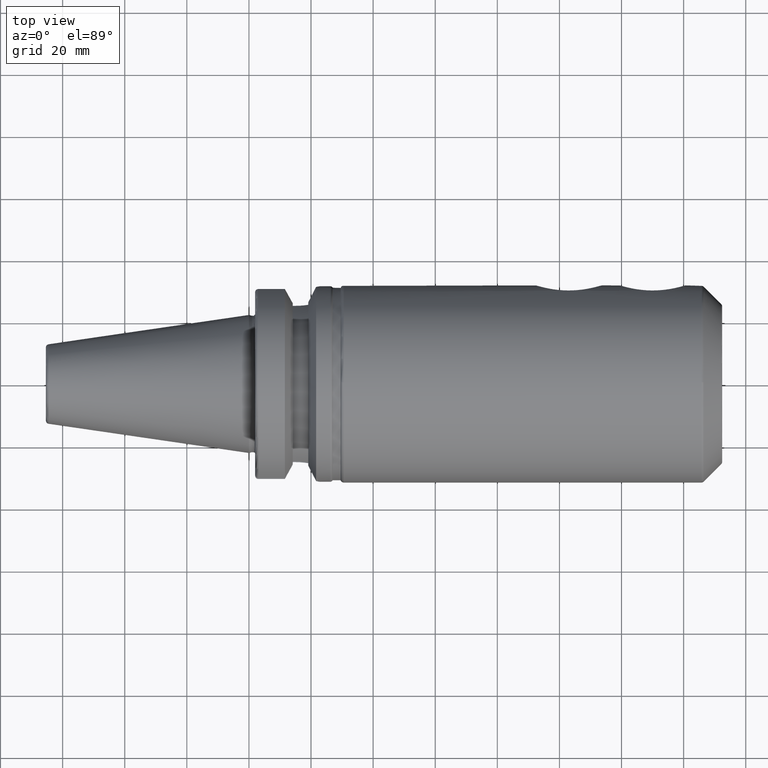
[diagram: clean part render]
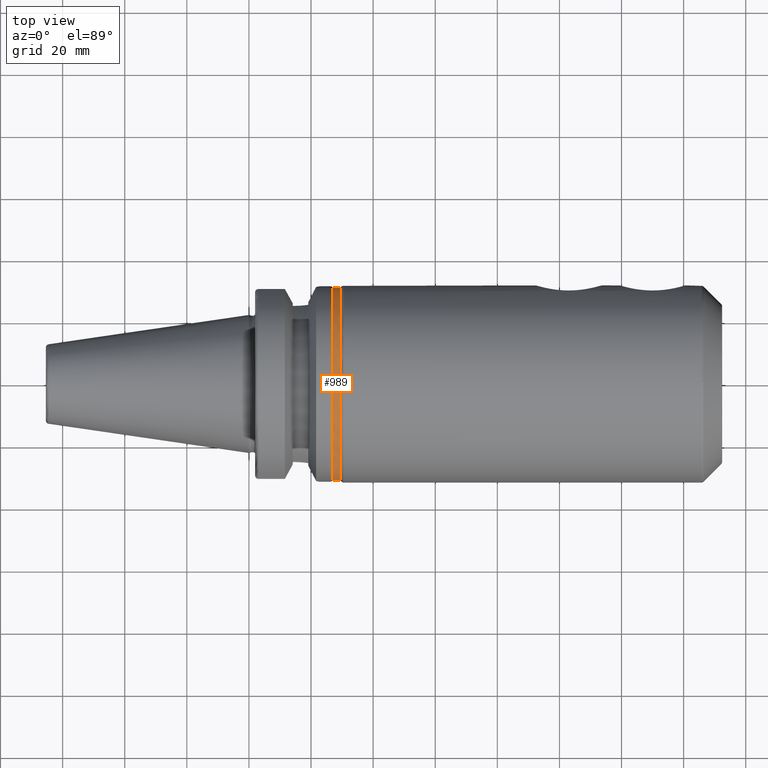
[diagram: same view with one face highlighted and labeled with its STEP entity id]
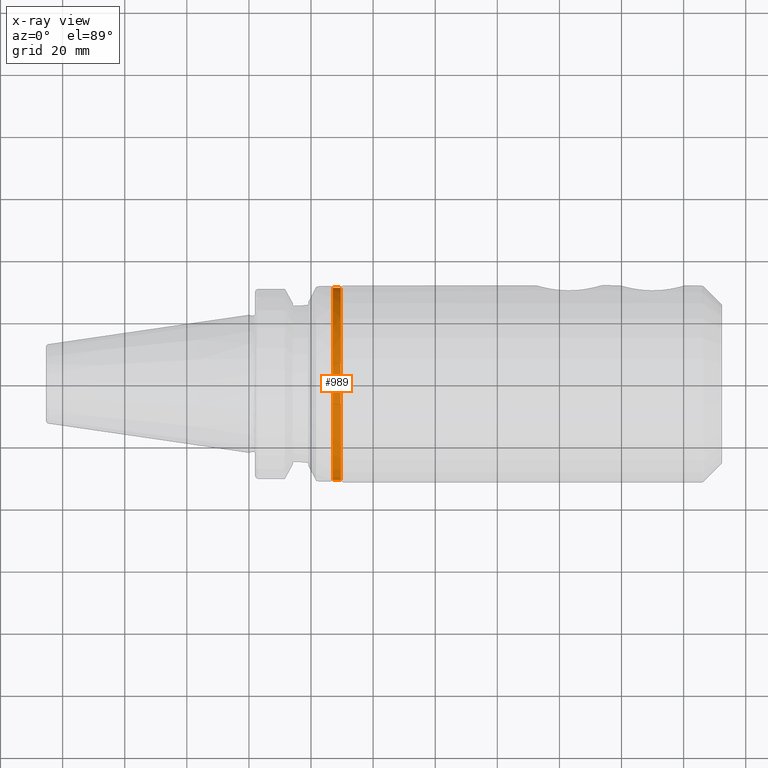
[diagram: x-ray of the same camera — body ghosted, the highlighted face saturated]
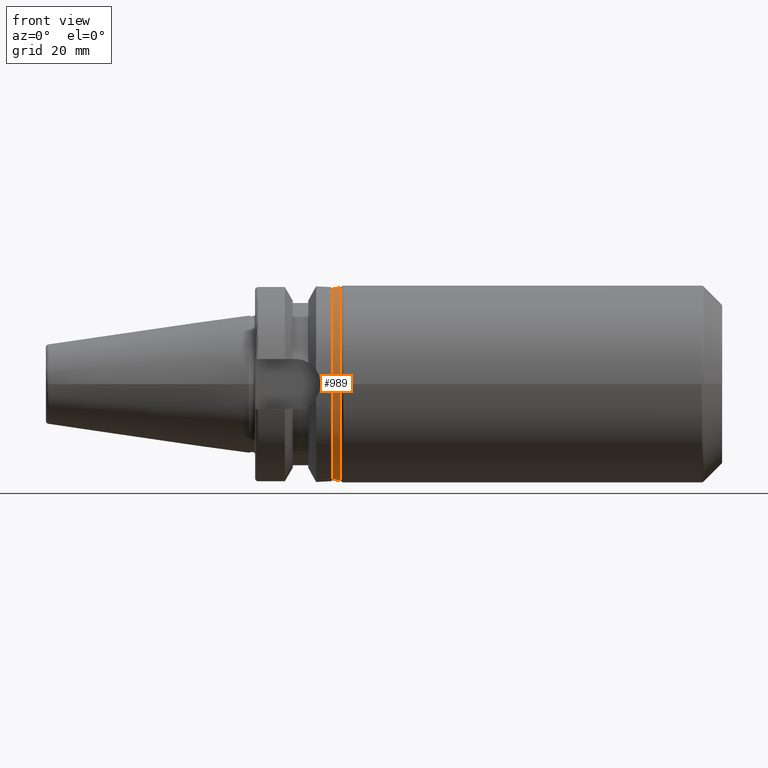
[diagram: same view with one face highlighted and labeled with its STEP entity id]
A machine part, top view. The second image highlights one B-rep face of the part: STEP entity #989.
The next image is the same camera in x-ray: the body ghosted, the highlighted face saturated — about 0% of this face is hidden behind the body in this view.
A second angle (front view) of the same face is appended — the face is thin or edge-on in the first view.
In plain terms, the highlighted cylindrical surface (bore or boss wall) has radius 31 mm, axis along (1, 0, 0).
Its self-contained STEP definition (entity closure, byte-faithful):
#76=LINE('',#2187,#130);
#130=VECTOR('',#1277,31.);
#176=CYLINDRICAL_SURFACE('',#1094,31.);
#232=FACE_OUTER_BOUND('',#296,.T.);
#296=EDGE_LOOP('',(#759,#760,#761,#762,#763));
#358=CIRCLE('',#1078,31.);
#366=CIRCLE('',#1095,31.);
#367=CIRCLE('',#1096,31.);
#431=VERTEX_POINT('',#1750);
#446=VERTEX_POINT('',#2184);
#447=VERTEX_POINT('',#2185);
#540=EDGE_CURVE('',#431,#431,#358,.T.);
#562=EDGE_CURVE('',#446,#447,#366,.T.);
#563=EDGE_CURVE('',#446,#431,#76,.T.);
#564=EDGE_CURVE('',#447,#446,#367,.T.);
#759=ORIENTED_EDGE('',*,*,#562,.F.);
#760=ORIENTED_EDGE('',*,*,#563,.T.);
#761=ORIENTED_EDGE('',*,*,#540,.F.);
#762=ORIENTED_EDGE('',*,*,#563,.F.);
#763=ORIENTED_EDGE('',*,*,#564,.F.);
#989=ADVANCED_FACE('',(#232),#176,.T.);
#1078=AXIS2_PLACEMENT_3D('',#1752,#1232,#1233);
#1094=AXIS2_PLACEMENT_3D('',#2183,#1273,#1274);
#1095=AXIS2_PLACEMENT_3D('',#2186,#1275,#1276);
#1096=AXIS2_PLACEMENT_3D('',#2188,#1278,#1279);
#1232=DIRECTION('center_axis',(-1.,0.,0.));
#1233=DIRECTION('ref_axis',(0.,1.,0.));
#1273=DIRECTION('center_axis',(1.,0.,0.));
#1274=DIRECTION('ref_axis',(0.,1.,0.));
#1275=DIRECTION('center_axis',(1.,0.,0.));
#1276=DIRECTION('ref_axis',(0.,0.,-1.));
#1277=DIRECTION('',(-1.,0.,0.));
#1278=DIRECTION('center_axis',(1.,0.,0.));
#1279=DIRECTION('ref_axis',(0.,0.,-1.));
#1750=CARTESIAN_POINT('',(27.,-31.,6.2751677334357E-15));
#1752=CARTESIAN_POINT('Origin',(27.,0.,0.));
#2183=CARTESIAN_POINT('Origin',(28.266,0.,0.));
#2184=CARTESIAN_POINT('',(29.532,-31.,-3.79640507735679E-15));
#2185=CARTESIAN_POINT('',(29.532,-3.7964050773568E-15,31.));
#2186=CARTESIAN_POINT('Origin',(29.532,0.,0.));
#2187=CARTESIAN_POINT('',(28.266,-31.,-3.79640507735679E-15));
#2188=CARTESIAN_POINT('Origin',(29.532,0.,0.));